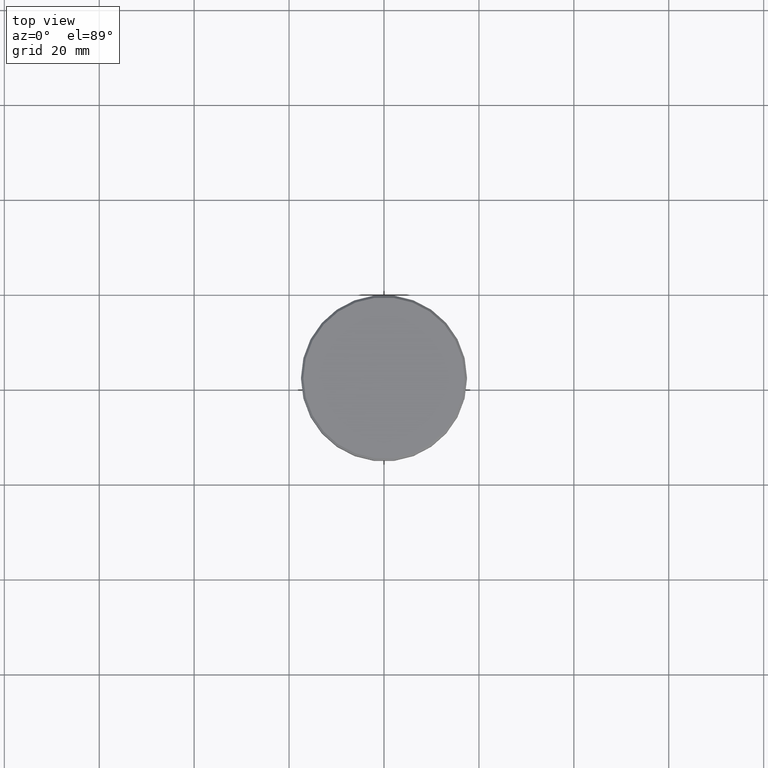
[diagram: clean part render]
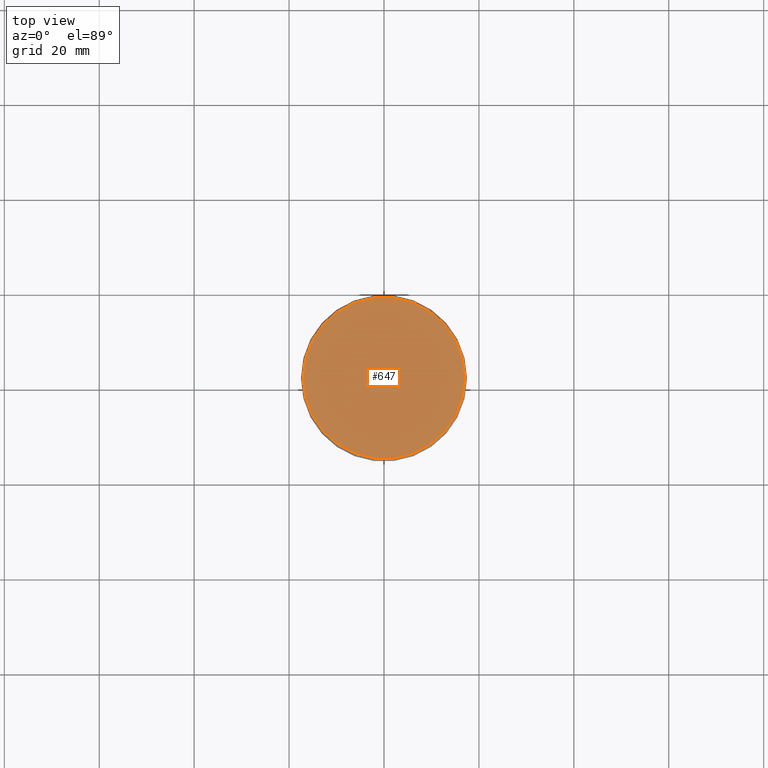
[diagram: same view with one face highlighted and labeled with its STEP entity id]
A machine part, top view. The second image highlights one B-rep face of the part: STEP entity #647.
In plain terms, the highlighted planar face has unit normal (0, -0, 1).
Its self-contained STEP definition (entity closure, byte-faithful):
#26 = ORIENTED_EDGE ( 'NONE', *, *, #490, .T. ) ;
#54 = DIRECTION ( 'NONE',  ( 1.000000000000000000, 0.000000000000000000, 0.000000000000000000 ) ) ;
#104 = CARTESIAN_POINT ( 'NONE',  ( 0.000000000000000000, 0.000000000000000000, 0.000000000000000000 ) ) ;
#202 = DIRECTION ( 'NONE',  ( 1.000000000000000000, 0.000000000000000000, 0.000000000000000000 ) ) ;
#263 = CARTESIAN_POINT ( 'NONE',  ( 0.000000000000000000, 0.000000000000000000, 0.000000000000000000 ) ) ;
#352 = DIRECTION ( 'NONE',  ( -0.000000000000000000, -0.000000000000000000, 1.000000000000000000 ) ) ;
#361 = AXIS2_PLACEMENT_3D ( 'NONE', #104, #1084, #202 ) ;
#399 = CIRCLE ( 'NONE', #533, 17.00000000000000000 ) ;
#410 = DIRECTION ( 'NONE',  ( -0.000000000000000000, -0.000000000000000000, 1.000000000000000000 ) ) ;
#445 = DIRECTION ( 'NONE',  ( 1.000000000000000000, 0.000000000000000000, 0.000000000000000000 ) ) ;
#446 = CARTESIAN_POINT ( 'NONE',  ( 17.00000000000000000, 2.112515728529184067E-15, 0.000000000000000000 ) ) ;
#490 = EDGE_CURVE ( 'NONE', #918, #509, #679, .T. ) ;
#509 = VERTEX_POINT ( 'NONE', #446 ) ;
#533 = AXIS2_PLACEMENT_3D ( 'NONE', #762, #410, #54 ) ;
#549 = FACE_OUTER_BOUND ( 'NONE', #896, .T. ) ;
#640 = AXIS2_PLACEMENT_3D ( 'NONE', #263, #352, #445 ) ;
#647 = ADVANCED_FACE ( 'NONE', ( #549 ), #742, .T. ) ;
#679 = CIRCLE ( 'NONE', #640, 17.00000000000000000 ) ;
#742 = PLANE ( 'NONE',  #361 ) ;
#762 = CARTESIAN_POINT ( 'NONE',  ( 0.000000000000000000, 0.000000000000000000, 0.000000000000000000 ) ) ;
#896 = EDGE_LOOP ( 'NONE', ( #26, #903 ) ) ;
#903 = ORIENTED_EDGE ( 'NONE', *, *, #1134, .T. ) ;
#918 = VERTEX_POINT ( 'NONE', #1022 ) ;
#1022 = CARTESIAN_POINT ( 'NONE',  ( -17.00000000000000000, 0.000000000000000000, 0.000000000000000000 ) ) ;
#1084 = DIRECTION ( 'NONE',  ( 0.000000000000000000, -0.000000000000000000, 1.000000000000000000 ) ) ;
#1134 = EDGE_CURVE ( 'NONE', #509, #918, #399, .T. ) ;